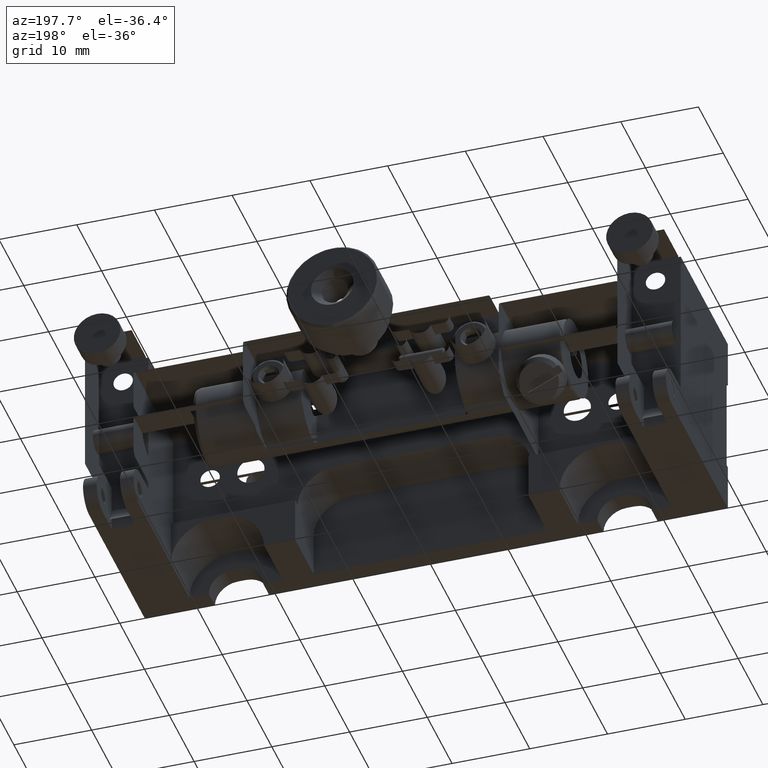
[diagram: clean part render]
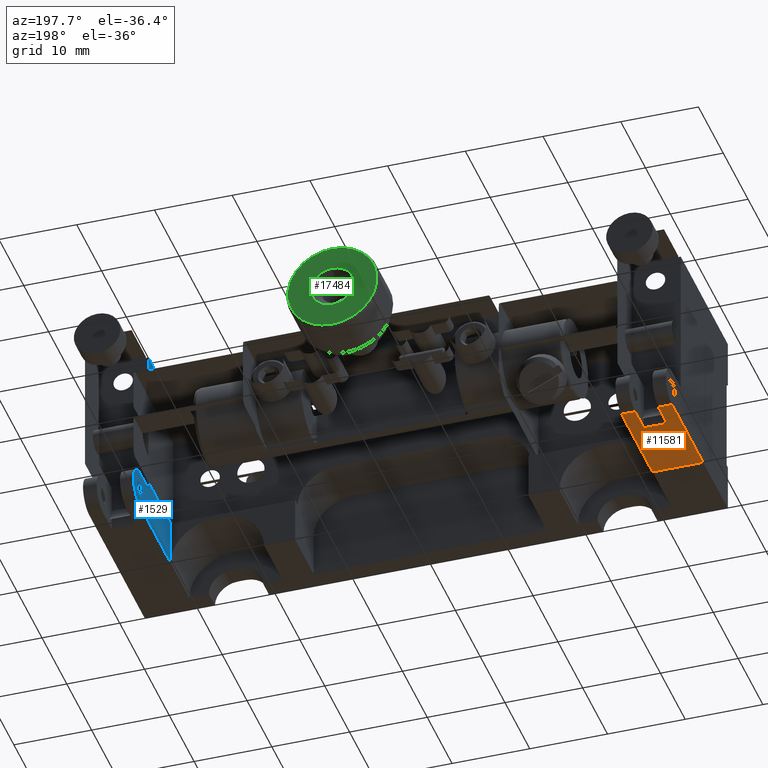
[diagram: same view with three faces highlighted in distinct colors, each labeled with its STEP entity id]
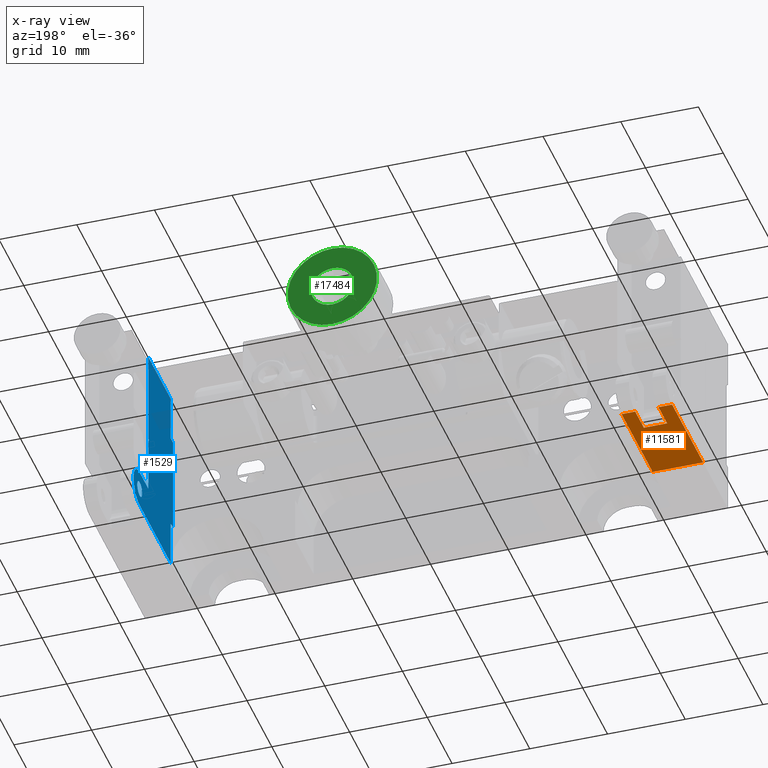
[diagram: x-ray of the same camera — body ghosted, the three highlighted faces saturated]
A machine part, auxiliary view with three faces highlighted in distinct colors.
The next image is the same camera in x-ray (body ghosted, the three faces saturated) — at least one of them is partly hidden behind the body in this view.
Their STEP definitions:

[orange] entity #11581 — the highlighted planar face has unit normal (0, -0, 1).
#405 = PLANE ( 'NONE',  #5021 ) ;
#1382 = CARTESIAN_POINT ( 'NONE',  ( -12.92365403371751675, 47.17343476192750984, 53.43264947075054749 ) ) ;
#1607 = LINE ( 'NONE', #11101, #15425 ) ;
#1634 = LINE ( 'NONE', #4808, #16921 ) ;
#1998 = LINE ( 'NONE', #17635, #4152 ) ;
#2342 = EDGE_CURVE ( 'NONE', #12618, #14773, #8818, .T. ) ;
#2393 = CARTESIAN_POINT ( 'NONE',  ( -17.67365403371751498, 50.67343476192749563, 53.43264947075054749 ) ) ;
#2754 = VECTOR ( 'NONE', #10874, 1000.000000000000000 ) ;
#3135 = DIRECTION ( 'NONE',  ( 1.000000000000000000, 0.000000000000000000, -0.000000000000000000 ) ) ;
#3191 = CARTESIAN_POINT ( 'NONE',  ( -12.92365403371751675, 53.17343476192748852, 53.43264947075054749 ) ) ;
#3770 = EDGE_CURVE ( 'NONE', #18352, #6522, #7585, .T. ) ;
#4152 = VECTOR ( 'NONE', #19374, 1000.000000000000000 ) ;
#4808 = CARTESIAN_POINT ( 'NONE',  ( -15.92365403371751675, 53.17343476192748852, 53.43264947075054749 ) ) ;
#4911 = FACE_OUTER_BOUND ( 'NONE', #7596, .T. ) ;
#5021 = AXIS2_PLACEMENT_3D ( 'NONE', #14102, #17473, #11239 ) ;
#5183 = ORIENTED_EDGE ( 'NONE', *, *, #15537, .F. ) ;
#6165 = DIRECTION ( 'NONE',  ( -0.000000000000000000, -1.000000000000000000, -0.000000000000000000 ) ) ;
#6250 = CARTESIAN_POINT ( 'NONE',  ( -15.92365403371751675, 47.17343476192750984, 53.43264947075054749 ) ) ;
#6262 = CARTESIAN_POINT ( 'NONE',  ( -11.17365403371751675, 50.67343476192749563, 53.43264947075054749 ) ) ;
#6327 = VECTOR ( 'NONE', #7481, 1000.000000000000000 ) ;
#6522 = VERTEX_POINT ( 'NONE', #1382 ) ;
#7204 = VERTEX_POINT ( 'NONE', #6250 ) ;
#7481 = DIRECTION ( 'NONE',  ( 0.000000000000000000, 1.000000000000000000, 0.000000000000000000 ) ) ;
#7516 = LINE ( 'NONE', #19984, #2754 ) ;
#7585 = LINE ( 'NONE', #3191, #17048 ) ;
#7596 = EDGE_LOOP ( 'NONE', ( #10669, #20100, #7904, #9582, #14326, #9328, #15478, #5183 ) ) ;
#7872 = EDGE_CURVE ( 'NONE', #7204, #9569, #1634, .T. ) ;
#7881 = CARTESIAN_POINT ( 'NONE',  ( -11.17365403371751675, 38.17343476192750984, 53.43264947075054749 ) ) ;
#7904 = ORIENTED_EDGE ( 'NONE', *, *, #17657, .F. ) ;
#8818 = LINE ( 'NONE', #13400, #6327 ) ;
#9328 = ORIENTED_EDGE ( 'NONE', *, *, #2342, .F. ) ;
#9569 = VERTEX_POINT ( 'NONE', #13682 ) ;
#9582 = ORIENTED_EDGE ( 'NONE', *, *, #3770, .F. ) ;
#9903 = EDGE_CURVE ( 'NONE', #9906, #12618, #1607, .T. ) ;
#9906 = VERTEX_POINT ( 'NONE', #12540 ) ;
#10669 = ORIENTED_EDGE ( 'NONE', *, *, #14172, .F. ) ;
#10874 = DIRECTION ( 'NONE',  ( -1.000000000000000000, -0.000000000000000000, 0.000000000000000000 ) ) ;
#11101 = CARTESIAN_POINT ( 'NONE',  ( -17.67365403371751498, 38.17343476192750984, 53.43264947075054749 ) ) ;
#11210 = CARTESIAN_POINT ( 'NONE',  ( -12.92365403371751675, 50.67343476192749563, 53.43264947075054749 ) ) ;
#11239 = DIRECTION ( 'NONE',  ( 1.000000000000000000, 0.000000000000000000, -0.000000000000000000 ) ) ;
#11477 = EDGE_CURVE ( 'NONE', #14773, #18352, #20143, .T. ) ;
#11581 = ADVANCED_FACE ( 'NONE', ( #4911 ), #405, .F. ) ;
#11970 = DIRECTION ( 'NONE',  ( -1.000000000000000000, -0.000000000000000000, 0.000000000000000000 ) ) ;
#12540 = CARTESIAN_POINT ( 'NONE',  ( -17.67365403371751498, 38.17343476192750984, 53.43264947075054749 ) ) ;
#12618 = VERTEX_POINT ( 'NONE', #7881 ) ;
#13346 = VERTEX_POINT ( 'NONE', #2393 ) ;
#13400 = CARTESIAN_POINT ( 'NONE',  ( -11.17365403371751675, 53.17343476192748852, 53.43264947075054749 ) ) ;
#13411 = DIRECTION ( 'NONE',  ( -0.000000000000000000, -1.000000000000000000, 0.000000000000000000 ) ) ;
#13682 = CARTESIAN_POINT ( 'NONE',  ( -15.92365403371751675, 50.67343476192749563, 53.43264947075054749 ) ) ;
#13711 = LINE ( 'NONE', #18131, #16898 ) ;
#14102 = CARTESIAN_POINT ( 'NONE',  ( -17.67365403371751498, 53.17343476192748852, 53.43264947075054749 ) ) ;
#14172 = EDGE_CURVE ( 'NONE', #9569, #13346, #1998, .T. ) ;
#14326 = ORIENTED_EDGE ( 'NONE', *, *, #11477, .F. ) ;
#14773 = VERTEX_POINT ( 'NONE', #6262 ) ;
#15335 = CARTESIAN_POINT ( 'NONE',  ( -17.67365403371751498, 50.67343476192749563, 53.43264947075054749 ) ) ;
#15425 = VECTOR ( 'NONE', #3135, 1000.000000000000000 ) ;
#15478 = ORIENTED_EDGE ( 'NONE', *, *, #9903, .F. ) ;
#15537 = EDGE_CURVE ( 'NONE', #13346, #9906, #13711, .T. ) ;
#16898 = VECTOR ( 'NONE', #13411, 1000.000000000000000 ) ;
#16921 = VECTOR ( 'NONE', #17370, 1000.000000000000000 ) ;
#17048 = VECTOR ( 'NONE', #6165, 1000.000000000000000 ) ;
#17074 = VECTOR ( 'NONE', #11970, 1000.000000000000000 ) ;
#17370 = DIRECTION ( 'NONE',  ( 0.000000000000000000, 1.000000000000000000, 0.000000000000000000 ) ) ;
#17473 = DIRECTION ( 'NONE',  ( 0.000000000000000000, -0.000000000000000000, 1.000000000000000000 ) ) ;
#17635 = CARTESIAN_POINT ( 'NONE',  ( -17.67365403371751498, 50.67343476192749563, 53.43264947075054749 ) ) ;
#17657 = EDGE_CURVE ( 'NONE', #6522, #7204, #7516, .T. ) ;
#18131 = CARTESIAN_POINT ( 'NONE',  ( -17.67365403371751498, 45.67343476192750984, 53.43264947075054749 ) ) ;
#18352 = VERTEX_POINT ( 'NONE', #11210 ) ;
#19374 = DIRECTION ( 'NONE',  ( -1.000000000000000000, -0.000000000000000000, 0.000000000000000000 ) ) ;
#19984 = CARTESIAN_POINT ( 'NONE',  ( -17.67365403371751498, 47.17343476192750273, 53.43264947075054749 ) ) ;
#20100 = ORIENTED_EDGE ( 'NONE', *, *, #7872, .F. ) ;
#20143 = LINE ( 'NONE', #15335, #17074 ) ;

[blue] entity #1529 — the highlighted planar face has unit normal (-1, 0, 0).
#168 = ORIENTED_EDGE ( 'NONE', *, *, #1642, .T. ) ;
#174 = CARTESIAN_POINT ( 'NONE',  ( 50.82634596628248858, 38.17343476192750984, 53.43264947075054749 ) ) ;
#261 = DIRECTION ( 'NONE',  ( -1.000000000000000000, 0.000000000000000000, 0.000000000000000000 ) ) ;
#282 = LINE ( 'NONE', #12341, #19406 ) ;
#373 = VERTEX_POINT ( 'NONE', #12660 ) ;
#657 = VERTEX_POINT ( 'NONE', #174 ) ;
#709 = CARTESIAN_POINT ( 'NONE',  ( 50.82634596628248858, 47.17343476192750984, 58.43264947075054749 ) ) ;
#782 = VERTEX_POINT ( 'NONE', #11804 ) ;
#892 = VECTOR ( 'NONE', #16033, 1000.000000000000000 ) ;
#959 = DIRECTION ( 'NONE',  ( 1.000000000000000000, -0.000000000000000000, -0.000000000000000000 ) ) ;
#1009 = LINE ( 'NONE', #4188, #11306 ) ;
#1099 = VERTEX_POINT ( 'NONE', #9845 ) ;
#1133 = DIRECTION ( 'NONE',  ( 0.000000000000000000, -0.8660254037844390407, -0.4999999999999993339 ) ) ;
#1191 = DIRECTION ( 'NONE',  ( 0.000000000000000000, 0.8660254037844390407, -0.4999999999999993339 ) ) ;
#1233 = CARTESIAN_POINT ( 'NONE',  ( 50.82634596628248858, 37.27343476192751837, 65.93264947075054749 ) ) ;
#1330 = CARTESIAN_POINT ( 'NONE',  ( 50.82634596628248858, 47.17343476192750273, 66.07698703804796025 ) ) ;
#1337 = ORIENTED_EDGE ( 'NONE', *, *, #12836, .T. ) ;
#1407 = DIRECTION ( 'NONE',  ( 0.000000000000000000, 0.000000000000000000, 1.000000000000000000 ) ) ;
#1529 = ADVANCED_FACE ( 'NONE', ( #19691, #13442 ), #20094, .T. ) ;
#1536 = ORIENTED_EDGE ( 'NONE', *, *, #15214, .T. ) ;
#1623 = CARTESIAN_POINT ( 'NONE',  ( 50.82634596628248858, 38.17343476192750984, 59.44264947075055261 ) ) ;
#1642 = EDGE_CURVE ( 'NONE', #1099, #6812, #19539, .T. ) ;
#1650 = LINE ( 'NONE', #9420, #13275 ) ;
#1660 = VECTOR ( 'NONE', #1133, 1000.000000000000000 ) ;
#1717 = ORIENTED_EDGE ( 'NONE', *, *, #13676, .T. ) ;
#2050 = DIRECTION ( 'NONE',  ( 0.000000000000000000, 1.000000000000000000, -0.000000000000000000 ) ) ;
#2076 = EDGE_LOOP ( 'NONE', ( #16065 ) ) ;
#2869 = DIRECTION ( 'NONE',  ( 0.000000000000000000, 0.000000000000000000, 1.000000000000000000 ) ) ;
#3225 = DIRECTION ( 'NONE',  ( 0.000000000000000000, 0.000000000000000000, 1.000000000000000000 ) ) ;
#3411 = CARTESIAN_POINT ( 'NONE',  ( 50.82634596628248858, 45.67343476192750984, 78.43264947075054749 ) ) ;
#3613 = EDGE_CURVE ( 'NONE', #657, #19886, #13270, .T. ) ;
#3615 = CARTESIAN_POINT ( 'NONE',  ( 50.82634596628248858, 37.27343476192751837, 72.42264947075054238 ) ) ;
#3616 = VERTEX_POINT ( 'NONE', #709 ) ;
#4144 = EDGE_CURVE ( 'NONE', #5405, #10999, #10628, .T. ) ;
#4188 = CARTESIAN_POINT ( 'NONE',  ( 50.82634596628248858, 45.67343476192750984, 59.44264947075055261 ) ) ;
#4479 = ORIENTED_EDGE ( 'NONE', *, *, #17157, .T. ) ;
#4559 = CARTESIAN_POINT ( 'NONE',  ( 50.82634596628248858, 50.67343476192748852, 56.92764947075054494 ) ) ;
#5209 = LINE ( 'NONE', #5307, #892 ) ;
#5307 = CARTESIAN_POINT ( 'NONE',  ( 50.82634596628248858, 47.17343476192750984, 65.93264947075054749 ) ) ;
#5405 = VERTEX_POINT ( 'NONE', #9678 ) ;
#5570 = DIRECTION ( 'NONE',  ( 0.000000000000000000, 0.000000000000000000, 1.000000000000000000 ) ) ;
#5696 = CARTESIAN_POINT ( 'NONE',  ( 50.82634596628248858, 47.17343476192750984, 66.07698703804796025 ) ) ;
#5720 = DIRECTION ( 'NONE',  ( 0.000000000000000000, 0.000000000000000000, 1.000000000000000000 ) ) ;
#5892 = CARTESIAN_POINT ( 'NONE',  ( 50.82634596628248858, 50.67343476192749563, 55.93264947075054749 ) ) ;
#5990 = DIRECTION ( 'NONE',  ( -1.000000000000000000, 0.000000000000000000, 0.000000000000000000 ) ) ;
#6270 = VERTEX_POINT ( 'NONE', #7755 ) ;
#6346 = VECTOR ( 'NONE', #9094, 1000.000000000000000 ) ;
#6663 = EDGE_CURVE ( 'NONE', #7530, #7530, #19291, .T. ) ;
#6812 = VERTEX_POINT ( 'NONE', #11164 ) ;
#7097 = ORIENTED_EDGE ( 'NONE', *, *, #13653, .T. ) ;
#7132 = EDGE_CURVE ( 'NONE', #12072, #13687, #16578, .T. ) ;
#7248 = CARTESIAN_POINT ( 'NONE',  ( 50.82634596628248858, 38.17343476192750984, 65.93264947075054749 ) ) ;
#7250 = LINE ( 'NONE', #13874, #15558 ) ;
#7530 = VERTEX_POINT ( 'NONE', #4559 ) ;
#7737 = VECTOR ( 'NONE', #17612, 1000.000000000000000 ) ;
#7755 = CARTESIAN_POINT ( 'NONE',  ( 50.82634596628248858, 47.17343476192750984, 65.78831190345313473 ) ) ;
#7837 = EDGE_LOOP ( 'NONE', ( #7097, #1536, #17845, #11229, #4479, #8734, #168, #11176, #10105, #12268, #11989, #1717, #1337 ) ) ;
#8734 = ORIENTED_EDGE ( 'NONE', *, *, #9464, .T. ) ;
#9058 = CARTESIAN_POINT ( 'NONE',  ( 50.82634596628248858, 45.67343476192750984, 65.93264947075054749 ) ) ;
#9071 = EDGE_CURVE ( 'NONE', #13687, #6270, #16933, .T. ) ;
#9094 = DIRECTION ( 'NONE',  ( -0.000000000000000000, -0.000000000000000000, -1.000000000000000000 ) ) ;
#9175 = DIRECTION ( 'NONE',  ( -0.000000000000000000, -1.000000000000000000, 0.000000000000000000 ) ) ;
#9420 = CARTESIAN_POINT ( 'NONE',  ( 50.82634596628248858, 45.67343476192750984, 58.43264947075054749 ) ) ;
#9464 = EDGE_CURVE ( 'NONE', #3616, #1099, #1650, .T. ) ;
#9644 = LINE ( 'NONE', #19153, #7737 ) ;
#9678 = CARTESIAN_POINT ( 'NONE',  ( 50.82634596628248858, 37.27343476192751837, 59.44264947075055261 ) ) ;
#9845 = CARTESIAN_POINT ( 'NONE',  ( 50.82634596628248858, 50.67343476192749563, 58.43264947075055460 ) ) ;
#10016 = VECTOR ( 'NONE', #1191, 1000.000000000000000 ) ;
#10025 = VECTOR ( 'NONE', #14551, 1000.000000000000000 ) ;
#10105 = ORIENTED_EDGE ( 'NONE', *, *, #3613, .T. ) ;
#10162 = CARTESIAN_POINT ( 'NONE',  ( 50.82634596628248858, 50.67343476192748852, 55.93264947075054039 ) ) ;
#10628 = LINE ( 'NONE', #1233, #18027 ) ;
#10999 = VERTEX_POINT ( 'NONE', #3615 ) ;
#11043 = AXIS2_PLACEMENT_3D ( 'NONE', #9058, #5990, #13845 ) ;
#11164 = CARTESIAN_POINT ( 'NONE',  ( 50.82634596628248858, 50.67343476192749563, 53.43264947075054749 ) ) ;
#11176 = ORIENTED_EDGE ( 'NONE', *, *, #18274, .T. ) ;
#11229 = ORIENTED_EDGE ( 'NONE', *, *, #9071, .T. ) ;
#11306 = VECTOR ( 'NONE', #19824, 1000.000000000000000 ) ;
#11363 = AXIS2_PLACEMENT_3D ( 'NONE', #5892, #261, #3225 ) ;
#11804 = CARTESIAN_POINT ( 'NONE',  ( 50.82634596628248858, 38.17343476192750984, 78.43264947075054749 ) ) ;
#11989 = ORIENTED_EDGE ( 'NONE', *, *, #4144, .T. ) ;
#12072 = VERTEX_POINT ( 'NONE', #5696 ) ;
#12268 = ORIENTED_EDGE ( 'NONE', *, *, #12783, .T. ) ;
#12341 = CARTESIAN_POINT ( 'NONE',  ( 50.82634596628248858, 45.67343476192750984, 53.43264947075054749 ) ) ;
#12660 = CARTESIAN_POINT ( 'NONE',  ( 50.82634596628248858, 47.17343476192750984, 78.43264947075054749 ) ) ;
#12783 = EDGE_CURVE ( 'NONE', #19886, #5405, #1009, .T. ) ;
#12836 = EDGE_CURVE ( 'NONE', #13330, #782, #7250, .T. ) ;
#12927 = CARTESIAN_POINT ( 'NONE',  ( 50.82634596628248858, 38.17343476192750984, 72.42264947075054238 ) ) ;
#13107 = LINE ( 'NONE', #3411, #10025 ) ;
#13270 = LINE ( 'NONE', #7248, #18664 ) ;
#13275 = VECTOR ( 'NONE', #2050, 1000.000000000000000 ) ;
#13330 = VERTEX_POINT ( 'NONE', #12927 ) ;
#13442 = FACE_BOUND ( 'NONE', #2076, .T. ) ;
#13653 = EDGE_CURVE ( 'NONE', #782, #373, #13107, .T. ) ;
#13676 = EDGE_CURVE ( 'NONE', #10999, #13330, #9644, .T. ) ;
#13687 = VERTEX_POINT ( 'NONE', #15882 ) ;
#13845 = DIRECTION ( 'NONE',  ( 0.000000000000000000, 0.000000000000000000, 1.000000000000000000 ) ) ;
#13874 = CARTESIAN_POINT ( 'NONE',  ( 50.82634596628248858, 38.17343476192750984, 65.93264947075054749 ) ) ;
#14551 = DIRECTION ( 'NONE',  ( 0.000000000000000000, 1.000000000000000000, -0.000000000000000000 ) ) ;
#15214 = EDGE_CURVE ( 'NONE', #373, #12072, #5209, .T. ) ;
#15399 = CARTESIAN_POINT ( 'NONE',  ( 50.82634596628248858, 47.17343476192750273, 65.78831190345313473 ) ) ;
#15558 = VECTOR ( 'NONE', #1407, 1000.000000000000000 ) ;
#15882 = CARTESIAN_POINT ( 'NONE',  ( 50.82634596628248858, 46.92343476192750984, 65.93264947075054749 ) ) ;
#16033 = DIRECTION ( 'NONE',  ( -0.000000000000000000, -0.000000000000000000, -1.000000000000000000 ) ) ;
#16065 = ORIENTED_EDGE ( 'NONE', *, *, #6663, .T. ) ;
#16464 = CARTESIAN_POINT ( 'NONE',  ( 50.82634596628248858, 47.17343476192750273, 65.93264947075054749 ) ) ;
#16578 = LINE ( 'NONE', #1330, #1660 ) ;
#16865 = LINE ( 'NONE', #16464, #6346 ) ;
#16933 = LINE ( 'NONE', #15399, #10016 ) ;
#17157 = EDGE_CURVE ( 'NONE', #6270, #3616, #16865, .T. ) ;
#17612 = DIRECTION ( 'NONE',  ( 0.000000000000000000, 1.000000000000000000, -0.000000000000000000 ) ) ;
#17845 = ORIENTED_EDGE ( 'NONE', *, *, #7132, .T. ) ;
#18027 = VECTOR ( 'NONE', #2869, 1000.000000000000000 ) ;
#18274 = EDGE_CURVE ( 'NONE', #6812, #657, #282, .T. ) ;
#18664 = VECTOR ( 'NONE', #5720, 1000.000000000000000 ) ;
#19153 = CARTESIAN_POINT ( 'NONE',  ( 50.82634596628248858, 45.67343476192750984, 72.42264947075054238 ) ) ;
#19291 = CIRCLE ( 'NONE', #19605, 0.9950000000000027711 ) ;
#19406 = VECTOR ( 'NONE', #9175, 1000.000000000000000 ) ;
#19539 = CIRCLE ( 'NONE', #11363, 2.500000000000002220 ) ;
#19605 = AXIS2_PLACEMENT_3D ( 'NONE', #10162, #959, #5570 ) ;
#19691 = FACE_OUTER_BOUND ( 'NONE', #7837, .T. ) ;
#19824 = DIRECTION ( 'NONE',  ( -0.000000000000000000, -1.000000000000000000, 0.000000000000000000 ) ) ;
#19886 = VERTEX_POINT ( 'NONE', #1623 ) ;
#20094 = PLANE ( 'NONE',  #11043 ) ;

[green] entity #17484 — the highlighted planar face has unit normal (-0, -1, -0).
#2029 = EDGE_CURVE ( 'NONE', #8770, #8770, #9412, .T. ) ;
#3337 = PLANE ( 'NONE',  #14507 ) ;
#3370 = EDGE_LOOP ( 'NONE', ( #10928 ) ) ;
#4267 = CARTESIAN_POINT ( 'NONE',  ( 19.72634596628246229, 70.47143821330337232, 68.68264947072405846 ) ) ;
#5828 = AXIS2_PLACEMENT_3D ( 'NONE', #9092, #18906, #7660 ) ;
#7389 = AXIS2_PLACEMENT_3D ( 'NONE', #19103, #15731, #7970 ) ;
#7660 = DIRECTION ( 'NONE',  ( 0.000000000000000000, 0.000000000000000000, 1.000000000000000000 ) ) ;
#7970 = DIRECTION ( 'NONE',  ( 0.000000000000000000, 0.000000000000000000, -1.000000000000000000 ) ) ;
#8770 = VERTEX_POINT ( 'NONE', #4267 ) ;
#8849 = EDGE_CURVE ( 'NONE', #19994, #19994, #10970, .T. ) ;
#9092 = CARTESIAN_POINT ( 'NONE',  ( 19.72634596628246229, 70.47143821330337232, 65.93264947075056170 ) ) ;
#9412 = CIRCLE ( 'NONE', #5828, 2.749999999973495868 ) ;
#10692 = CARTESIAN_POINT ( 'NONE',  ( 19.72634596628246229, 70.47143821326537250, 65.93264947075056170 ) ) ;
#10928 = ORIENTED_EDGE ( 'NONE', *, *, #8849, .F. ) ;
#10970 = CIRCLE ( 'NONE', #7389, 5.749999999925502259 ) ;
#11564 = EDGE_LOOP ( 'NONE', ( #13050 ) ) ;
#13050 = ORIENTED_EDGE ( 'NONE', *, *, #2029, .F. ) ;
#13960 = CARTESIAN_POINT ( 'NONE',  ( 19.72634596628246229, 70.47143821334367431, 60.18264947082505500 ) ) ;
#13971 = DIRECTION ( 'NONE',  ( 1.000000000000000000, -1.424151901242279252E-16, 0.000000000000000000 ) ) ;
#14507 = AXIS2_PLACEMENT_3D ( 'NONE', #10692, #17040, #13971 ) ;
#15731 = DIRECTION ( 'NONE',  ( 0.000000000000000000, -1.000000000000000000, 0.000000000000000000 ) ) ;
#17040 = DIRECTION ( 'NONE',  ( -1.424151901242279252E-16, -1.000000000000000000, -2.449782889260564443E-31 ) ) ;
#17484 = ADVANCED_FACE ( 'NONE', ( #18778, #18885 ), #3337, .F. ) ;
#18778 = FACE_OUTER_BOUND ( 'NONE', #3370, .T. ) ;
#18885 = FACE_BOUND ( 'NONE', #11564, .T. ) ;
#18906 = DIRECTION ( 'NONE',  ( 0.000000000000000000, 1.000000000000000000, 0.000000000000000000 ) ) ;
#19103 = CARTESIAN_POINT ( 'NONE',  ( 19.72634596628246229, 70.47143821334367431, 65.93264947075056170 ) ) ;
#19994 = VERTEX_POINT ( 'NONE', #13960 ) ;